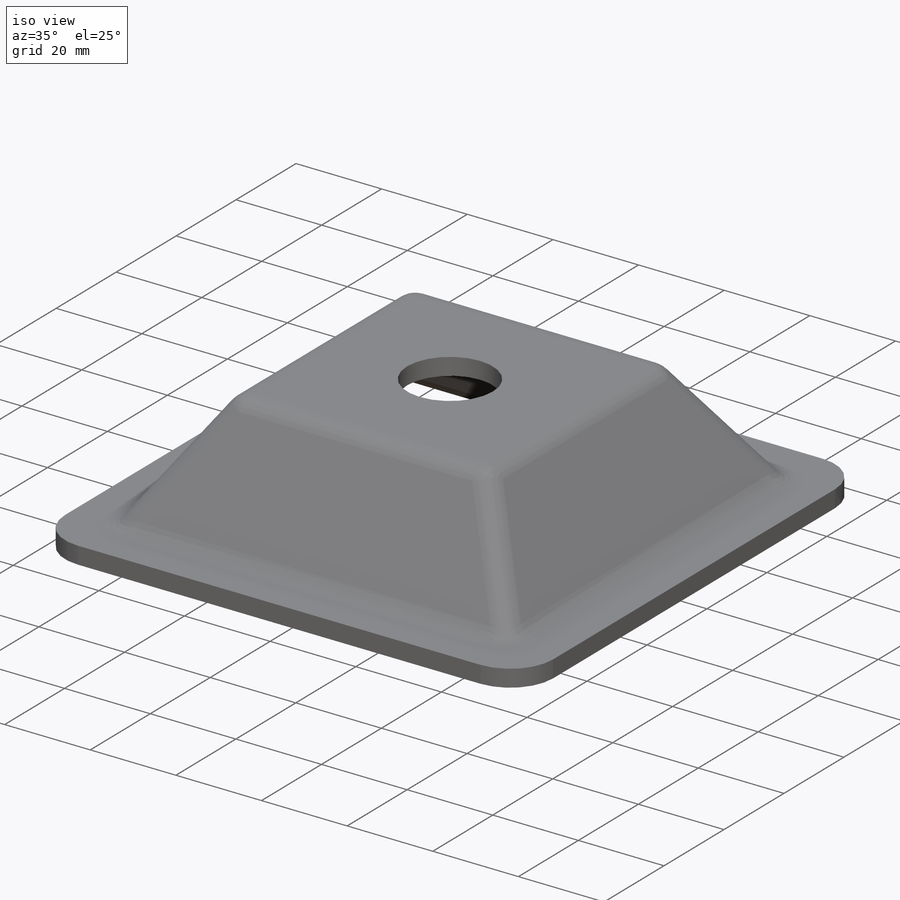
[diagram: iso view]
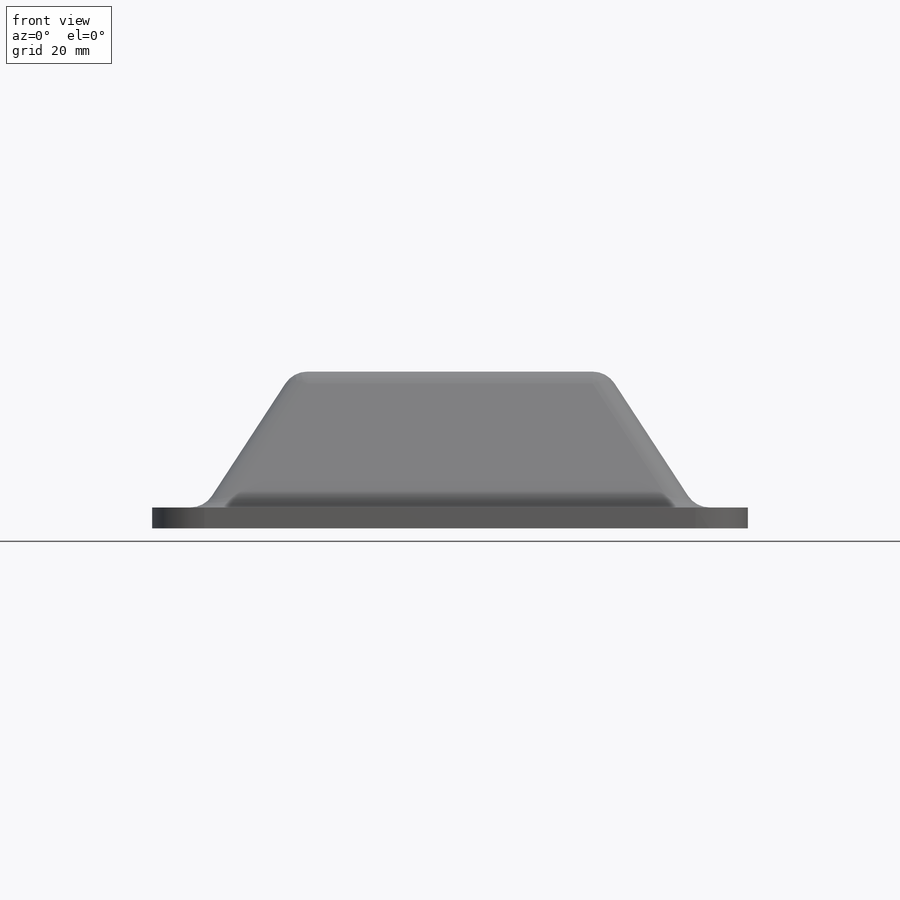
[diagram: front view]
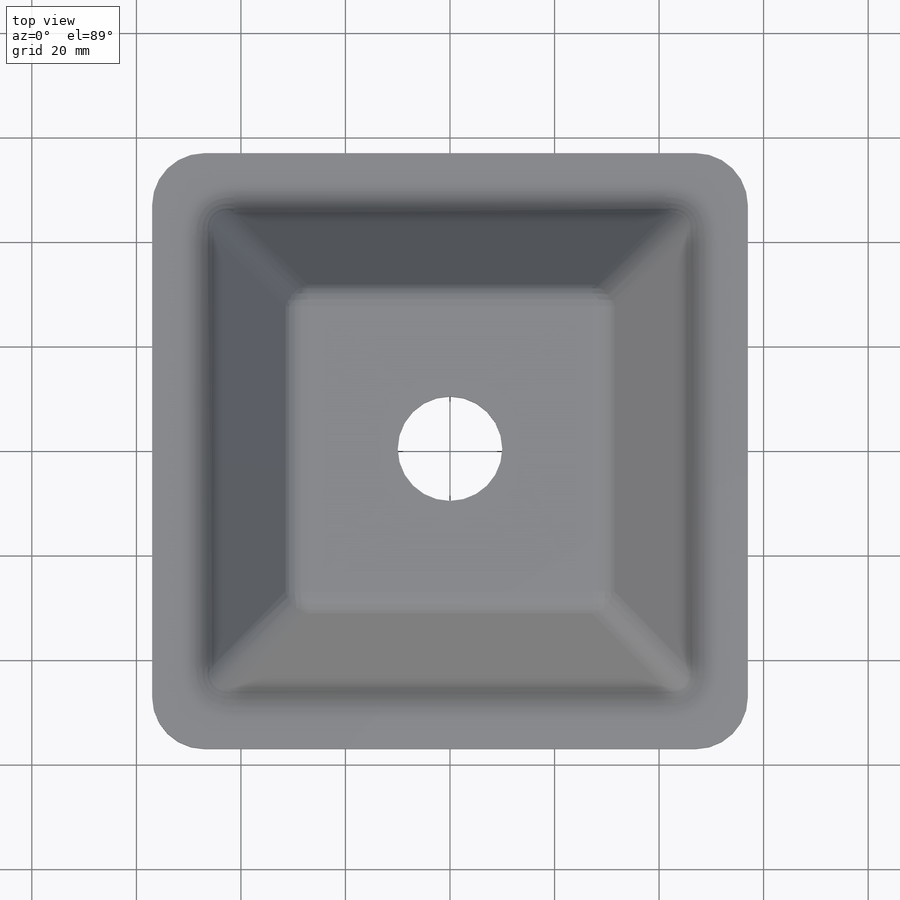
[diagram: top view]
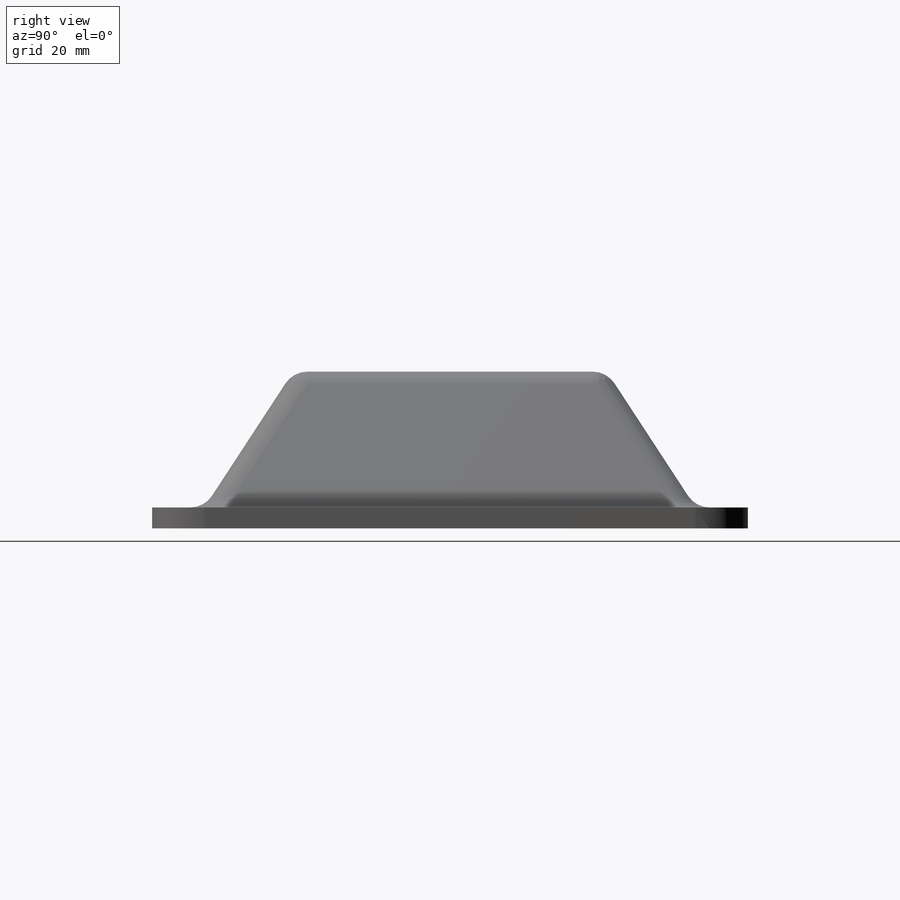
[diagram: right view]
SOLIDWORKS PART (.sldprt)
format: sldprt  version: not decoded by parser v0  size: 333,312 bytes
history: native  units: mm
features: sketch x5, plane x4, fillet x2, material x1, extrude x1, shell x1, hole x1 (+9 scaffold rows collapsed)
feature tree (24):
  scaffold x9  (default folders/planes/origin — collapsed)
  material  "Material <nicht festgelegt>"
  plane  "Vorne"
  plane  "Oben"
  plane  "Rechts"
  sketch  "Skizze1"  dims[c1.D1=~69.886615mm c2.D1=114.0mm c2.D2=114.0mm]
  extrude  "Aufsatz-Linear austragen1"  Depth=4mm
  sketch  "Skizze2"  dims[D1=10.0mm]
  plane  "Ebene1"  Offset=30mm
  sketch  "Skizze3"  dims[D1=60.0mm D2=60.0mm]
  fillet  "Verrundung1"  Radius=5mm
  fillet  "Verrundung2"  Radius=10mm
  shell  "Wandung2"  Thickness=4mm
  hole  "Ø20.0 (20) Durchmesser Bohrung1"  Diameter=20mm Depth=4mm
  sketch  "Skizze5"
  sketch  "Skizze6"  dims[hole-wizard template sketch: 59 standard entries collapsed; hole parameters kept: c18.Bohrerdurchmesser=20.0mm c18.Bohrungstiefe=4.0mm]
decode coverage: 9 of 10 modeling features carry decoded parameters
note: ~ marks probable driven/reference dimensions
note: suppression state not decoded; provenance and decode notes live in map.json
